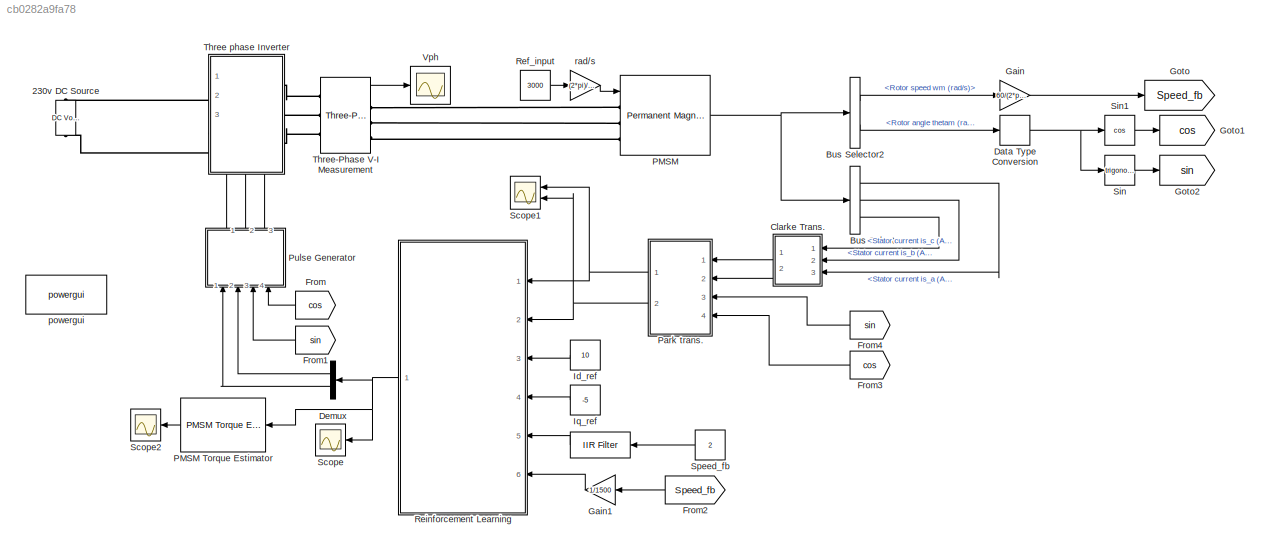
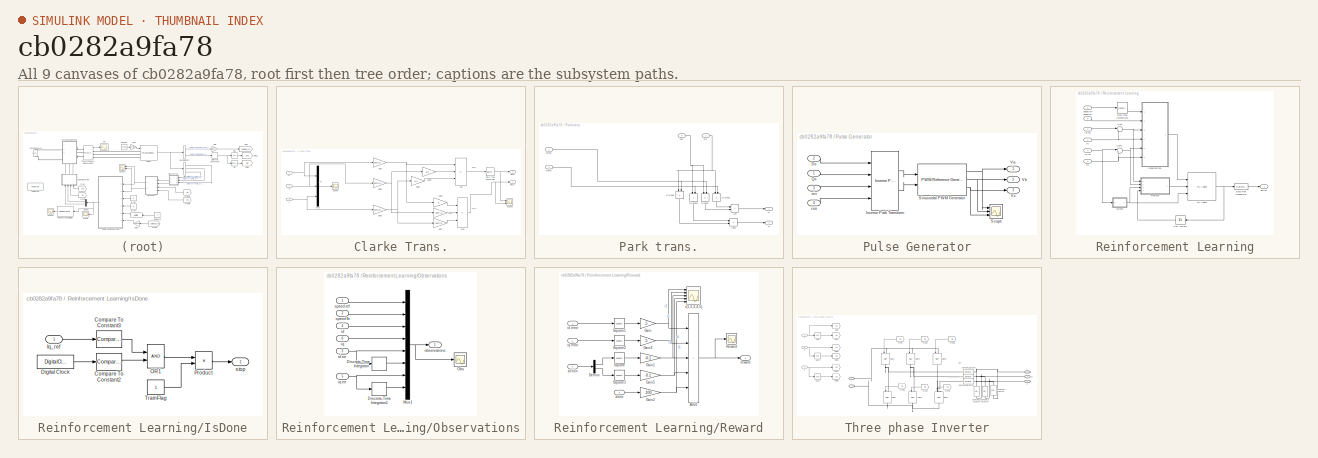
[diagram: thumbnail index - all 9 canvases of the model, root first then tree order]
MODEL slx_cb0282a9fa78
KIND model
CONFIG AbsTol = auto
CONFIG EnableMultiTasking = off
CONFIG FixedStep = auto
CONFIG MaxStep = auto
CONFIG MinStep = auto
CONFIG RelTol = 1e-3
CONFIG SampleTimeConstraint = Unconstrained
CONFIG SolverName = VariableStepAuto
CONFIG StartTime = 0.0
CONFIG StopTime = 0.2
BLOCK [Reference]      REF=mcbcontrolslib/IIR Filter
  Ports = [1, 1]
  SourceBlock = mcbcontrolslib/IIR Filter
  SourceProductBaseCode = MT
  SourceType = IIR Filter
BLOCK [Reference] 230v DC Source  REF=spsDCVoltageSourceLib/DC Voltage Source
  NameLocation = right
  Ports = [0, 0, 0, 0, 0, 1, 1]
  SourceBlock = spsDCVoltageSourceLib/DC Voltage Source
  SourceProductBaseCode = PS
  SourceType = DC Voltage Source
BLOCK [BusSelector] Bus Selector
  OutputSignals = Stator current is_a (A),Stator current is_b (A),Stator current is_c (A)
  Ports = [1, 3]
BLOCK [BusSelector] Bus Selector2
  OutputSignals = Rotor speed wm (rad/s),Rotor angle thetam (rad)
  Ports = [1, 2]
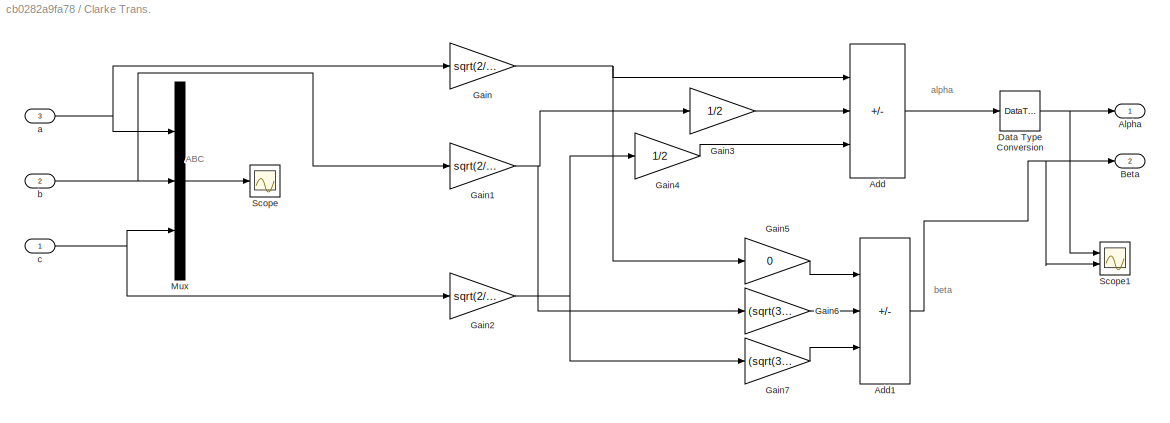
BLOCK [SubSystem] Clarke Trans.
  Ports = [3, 2]
  RequestExecContextInheritance = off
BLOCK [Sum] Clarke Trans./Add
  AccumDataTypeStr = single
  IconShape = rectangular
  Inputs = +--
  Ports = [3, 1]
BLOCK [Sum] Clarke Trans./Add1
  AccumDataTypeStr = double
  IconShape = rectangular
  Inputs = ++-
  Ports = [3, 1]
BLOCK [Outport] Clarke Trans./Alpha
BLOCK [Outport] Clarke Trans./Beta
  Port = 2
BLOCK [DataTypeConversion] Clarke Trans./Data Type Conversion
  OutDataTypeStr = single
  RndMeth = Floor
  SaturateOnIntegerOverflow = off
BLOCK [Gain] Clarke Trans./Gain
  Gain = sqrt(2/3)
BLOCK [Gain] Clarke Trans./Gain1
  Gain = sqrt(2/3)
BLOCK [Gain] Clarke Trans./Gain2
  Gain = sqrt(2/3)
BLOCK [Gain] Clarke Trans./Gain3
  Gain = 1/2
BLOCK [Gain] Clarke Trans./Gain4
  Gain = 1/2
BLOCK [Gain] Clarke Trans./Gain5
  Gain = 0
BLOCK [Gain] Clarke Trans./Gain6
  Gain = (sqrt(3))/2
BLOCK [Gain] Clarke Trans./Gain7
  Gain = (sqrt(3))/2
BLOCK [Mux] Clarke Trans./Mux
  DisplayOption = bar
  Inputs = 3
  Ports = [3, 1]
BLOCK [Scope] Clarke Trans./Scope
  Floating = off
  NumInputPorts = 1
  Ports = [1]
  ScopeSpecificationString = Simulink.scopes.TimeScopeBlockCfg('CurrentConfiguration', extmgr.ConfigurationSet(extmgr.Configuration('Core','General UI',true),extmgr.Configuration('Core','Source UI',true),extmgr.Configuration('Sources','WiredSimulink',true,'DataLoggingVariableName','ScopeData2'),extmgr.Configuration('Visuals','Time Domain',true,'SerializedDisplays',{struct('MinYLimReal','-1.2435','MaxYLimReal','1.07088','YLabe...<+1391ch>
BLOCK [Scope] Clarke Trans./Scope1
  Floating = off
  NumInputPorts = 2
  Ports = [2]
  ScopeSpecificationString = Simulink.scopes.TimeScopeBlockCfg('CurrentConfiguration', extmgr.ConfigurationSet(extmgr.Configuration('Core','General UI',true),extmgr.Configuration('Core','Source UI',true),extmgr.Configuration('Sources','WiredSimulink',true,'DataLoggingVariableName','ScopeData2'),extmgr.Configuration('Visuals','Time Domain',true,'SerializedDisplays',{struct('MinYLimReal','-1.56491','MaxYLimReal','1.62173','YLab...<+1463ch>
BLOCK [Inport] Clarke Trans./a
  Port = 3
BLOCK [Inport] Clarke Trans./b
  Port = 2
BLOCK [Inport] Clarke Trans./c
BLOCK [DataTypeConversion] Data Type Conversion
  OutDataTypeStr = single
  RndMeth = Floor
  SaturateOnIntegerOverflow = off
BLOCK [Demux] Demux
  Outputs = 2
  Ports = [1, 2]
BLOCK [From] From
  GotoTag = cos
BLOCK [From] From1
  GotoTag = sin
BLOCK [From] From2
  GotoTag = Speed_fb
BLOCK [From] From3
  GotoTag = cos
BLOCK [From] From4
  GotoTag = sin
BLOCK [Gain] Gain
  Gain = 60/(2*pi)
  OutDataTypeStr = double
BLOCK [Gain] Gain1
  Gain = 1/1500
BLOCK [Goto] Goto
  GotoTag = Speed_fb
BLOCK [Goto] Goto1
  GotoTag = cos
BLOCK [Goto] Goto2
  GotoTag = sin
BLOCK [Constant] Id_ref
  NameLocation = right
  OutDataTypeStr = double
  SampleTime = Ts_speed
  Value = 10
BLOCK [Constant] Iq_ref
  NameLocation = right
  OutDataTypeStr = double
  SampleTime = Ts_speed
  Value = -5
BLOCK [Reference] PMSM  REF=spsPermanentMagnetSynchronousMachineLib/Permanent Magnet
Synchronous Machine
  Ports = [1, 1, 0, 0, 0, 3]
  SourceBlock = spsPermanentMagnetSynchronousMachineLib/Permanent Magnet\nSynchronous Machine
  SourceProductBaseCode = PS
  SourceType = Permanent Magnet Synchronous Machine
BLOCK [Reference] PMSM Torque Estimator  REF=eePmsmTorqueEstimator/PMSM Torque
Estimator
  Ports = [1, 1]
  SourceBlock = eePmsmTorqueEstimator/PMSM Torque\nEstimator
  SourceProductBaseCode = PS
  SourceType = PMSM Torque Estimator
BLOCK [SubSystem] Park trans.
  NameLocation = top
  Ports = [4, 2]
  RequestExecContextInheritance = off
BLOCK [Sum] Park trans./Add
  IconShape = rectangular
  Ports = [2, 1]
BLOCK [Sum] Park trans./Add1
  IconShape = rectangular
  Inputs = -+
  Ports = [2, 1]
BLOCK [Inport] Park trans./Beta
  Port = 2
BLOCK [Outport] Park trans./D
BLOCK [Product] Park trans./Divide
  Inputs = **
  NameLocation = left
  Ports = [2, 1]
BLOCK [Product] Park trans./Divide1
  Inputs = **
  NameLocation = left
  Ports = [2, 1]
BLOCK [Product] Park trans./Divide2
  Inputs = **
  NameLocation = left
  Ports = [2, 1]
BLOCK [Product] Park trans./Divide3
  Inputs = **
  NameLocation = left
  Ports = [2, 1]
BLOCK [Outport] Park trans./Q
  Port = 2
BLOCK [Inport] Park trans./alpha
BLOCK [Inport] Park trans./cos
  Port = 4
BLOCK [Inport] Park trans./sin
  Port = 3
BLOCK [SubSystem] Pulse Generator
  NameLocation = left
  Ports = [4, 3]
  RequestExecContextInheritance = off
BLOCK [Inport] Pulse Generator/Ds
  Port = 2
BLOCK [Reference] Pulse Generator/Inverse Park Transform  REF=mcbcontrolslib/Inverse Park Transform
  Ports = [4, 2]
  SourceBlock = mcbcontrolslib/Inverse Park Transform
  SourceProductBaseCode = MT
  SourceType = Inverse Park Transform
BLOCK [Inport] Pulse Generator/Qs
BLOCK [Scope] Pulse Generator/Scope
  Floating = off
  NumInputPorts = 3
  Ports = [3]
  ScopeSpecificationString = Simulink.scopes.TimeScopeBlockCfg('CurrentConfiguration', extmgr.ConfigurationSet(extmgr.Configuration('Core','General UI',true),extmgr.Configuration('Core','Source UI',true),extmgr.Configuration('Sources','WiredSimulink',true,'DataLoggingVariableName','ScopeData4'),extmgr.Configuration('Visuals','Time Domain',true,'SerializedDisplays',{struct('MinYLimReal','-1.48048','MaxYLimReal','1.47516','YLab...<+1495ch>
BLOCK [Reference] Pulse Generator/Sinusoidal PWM Generator  REF=mcbcontrolslib/PWM Reference Generator
  Ports = [2, 3]
  SourceBlock = mcbcontrolslib/PWM Reference Generator
  SourceProductBaseCode = MT
  SourceType = PWM Modulation
BLOCK [Outport] Pulse Generator/Va
BLOCK [Outport] Pulse Generator/Vb
  Port = 2
BLOCK [Outport] Pulse Generator/Vc
  Port = 3
BLOCK [Inport] Pulse Generator/cos
  Port = 4
BLOCK [Inport] Pulse Generator/sin
  Port = 3
BLOCK [Constant] Ref_input
  NameLocation = top
  SampleTime = Ts_simulink
  Value = 3000
BLOCK [SubSystem] Reinforcement Learning
  NameLocation = top
  Ports = [6, 1]
  RequestExecContextInheritance = off
BLOCK [DataTypeConversion] Reinforcement Learning/Data Type Conversion
  OutDataTypeStr = dataType
  RndMeth = Floor
  SaturateOnIntegerOverflow = off
BLOCK [DataTypeConversion] Reinforcement Learning/Data Type Conversion1
  OutDataTypeStr = double
  RndMeth = Floor
  SaturateOnIntegerOverflow = off
BLOCK [SubSystem] Reinforcement Learning/IsDone
  Ports = [1, 1]
  RequestExecContextInheritance = off
BLOCK [Reference] Reinforcement Learning/IsDone/Compare To Constant2  REF=simulink/Logic and Bit
Operations/Compare
To Constant
  Ports = [1, 1]
  SourceBlock = simulink/Logic and Bit\nOperations/Compare\nTo Constant
  SourceProductBaseCode = SL
  SourceType = Compare To Constant
BLOCK [Reference] Reinforcement Learning/IsDone/Compare To Constant3  REF=simulink/Logic and Bit
Operations/Compare
To Constant
  Ports = [1, 1]
  SourceBlock = simulink/Logic and Bit\nOperations/Compare\nTo Constant
  SourceProductBaseCode = SL
  SourceType = Compare To Constant
BLOCK [DigitalClock] Reinforcement Learning/IsDone/Digital Clock
  SampleTime = Ts_agent
BLOCK [Inport] Reinforcement Learning/IsDone/Iq_ref
BLOCK [Logic] Reinforcement Learning/IsDone/OR1
  AllPortsSameDT = off
  IconShape = distinctive
  OutDataTypeStr = boolean
  Ports = [2, 1]
BLOCK [Product] Reinforcement Learning/IsDone/Product
  Ports = [2, 1]
BLOCK [Constant] Reinforcement Learning/IsDone/TrainFlag
  OutDataTypeStr = double
BLOCK [Outport] Reinforcement Learning/IsDone/stop
BLOCK [SubSystem] Reinforcement Learning/Observations
  Ports = [6, 1]
  RequestExecContextInheritance = off
BLOCK [DiscreteIntegrator] Reinforcement Learning/Observations/Discrete-Time Integrator
  ICPrevOutput = DiscIntNeverNeededParam
  ICPrevScaledInput = DiscIntNeverNeededParam
  InitialConditionSetting = Auto
  Ports = [1, 1]
  SampleTime = -1
BLOCK [DiscreteIntegrator] Reinforcement Learning/Observations/Discrete-Time Integrator1
  ICPrevOutput = DiscIntNeverNeededParam
  ICPrevScaledInput = DiscIntNeverNeededParam
  InitialConditionSetting = Auto
  Ports = [1, 1]
  SampleTime = -1
BLOCK [Mux] Reinforcement Learning/Observations/Mux1
  DisplayOption = bar
  Inputs = 8
  Ports = [8, 1]
BLOCK [Scope] Reinforcement Learning/Observations/Obs
  Floating = off
  NumInputPorts = 1
  Ports = [1]
  ScopeSpecificationString = Simulink.scopes.TimeScopeBlockCfg('CurrentConfiguration', extmgr.ConfigurationSet(extmgr.Configuration('Core','General UI',true),extmgr.Configuration('Core','Source UI',true),extmgr.Configuration('Sources','WiredSimulink',true,'DataLoggingVariableName','ScopeData1'),extmgr.Configuration('Visuals','Time Domain',true,'SerializedDisplays',{struct('MinYLimReal','-13.3621','MaxYLimReal','7.61024','YLab...<+1489ch>
BLOCK [Inport] Reinforcement Learning/Observations/id
  Port = 4
BLOCK [Inport] Reinforcement Learning/Observations/id err
  Port = 3
BLOCK [Inport] Reinforcement Learning/Observations/iq
  Port = 6
BLOCK [Inport] Reinforcement Learning/Observations/iq err
  Port = 5
BLOCK [Outport] Reinforcement Learning/Observations/observations
  VectorParamsAs1DForOutWhenUnconnected = off
BLOCK [Inport] Reinforcement Learning/Observations/speed fb
  Port = 2
BLOCK [Inport] Reinforcement Learning/Observations/speed ref
BLOCK [Reference] Reinforcement Learning/RL Agent  REF=rllib/RL Agent
  Ports = [3, 1]
  SourceBlock = rllib/RL Agent
  SourceProductBaseCode = RL
  SourceType = RL Agent
BLOCK [SubSystem] Reinforcement Learning/Reward
  Ports = [4, 1]
  RequestExecContextInheritance = off
BLOCK [Scope] Reinforcement Learning/Reward/ r(1,2,3,4,5)
  Floating = off
  NumInputPorts = 5
  Ports = [5]
  ScopeSpecificationString = Simulink.scopes.TimeScopeBlockCfg('CurrentConfiguration', extmgr.ConfigurationSet(extmgr.Configuration('Core','General UI',true),extmgr.Configuration('Core','Source UI',true),extmgr.Configuration('Sources','WiredSimulink',true,'DataLoggingVariableName','ScopeData2'),extmgr.Configuration('Visuals','Time Domain',true,'SerializedDisplays',{struct('MinYLimReal','-28.76146','MaxYLimReal','3.19572','YLa...<+1566ch>
BLOCK [Sum] Reinforcement Learning/Reward/Add1
  IconShape = rectangular
  Inputs = +++++
  Ports = [5, 1]
BLOCK [Demux] Reinforcement Learning/Reward/Demux
  Outputs = 2
  Ports = [1, 2]
BLOCK [Gain] Reinforcement Learning/Reward/Gain
  Gain = -5
BLOCK [Gain] Reinforcement Learning/Reward/Gain1
  Gain = -0.1
BLOCK [Gain] Reinforcement Learning/Reward/Gain2
  Gain = -100
BLOCK [Gain] Reinforcement Learning/Reward/Gain3
  Gain = -5
BLOCK [Gain] Reinforcement Learning/Reward/Gain5
  Gain = -0.1
BLOCK [Scope] Reinforcement Learning/Reward/Reward
  Floating = off
  NumInputPorts = 1
  Ports = [1]
  ScopeSpecificationString = Simulink.scopes.TimeScopeBlockCfg('CurrentConfiguration', extmgr.ConfigurationSet(extmgr.Configuration('Core','General UI',true),extmgr.Configuration('Core','Source UI',true),extmgr.Configuration('Sources','WiredSimulink',true,'DataLoggingVariableName','ScopeData2'),extmgr.Configuration('Visuals','Time Domain',true,'SerializedDisplays',{struct('MinYLimReal','-791.1215','MaxYLimReal','-453.57393','...<+1402ch>
BLOCK [Math] Reinforcement Learning/Reward/Square
  Operator = square
  Ports = [1, 1]
BLOCK [Math] Reinforcement Learning/Reward/Square1
  Operator = square
  Ports = [1, 1]
BLOCK [Math] Reinforcement Learning/Reward/Square2
  Operator = square
  Ports = [1, 1]
BLOCK [Math] Reinforcement Learning/Reward/Square3
  Operator = square
  Ports = [1, 1]
BLOCK [Inport] Reinforcement Learning/Reward/action
  Port = 4
BLOCK [Inport] Reinforcement Learning/Reward/done
  Port = 3
BLOCK [Inport] Reinforcement Learning/Reward/id error
BLOCK [Inport] Reinforcement Learning/Reward/iq error
  Port = 2
BLOCK [Outport] Reinforcement Learning/Reward/reward
  VectorParamsAs1DForOutWhenUnconnected = off
BLOCK [Sum] Reinforcement Learning/Sum
  Inputs = |+-
  OutDataTypeStr = Inherit: Inherit via back propagation
  Ports = [2, 1]
BLOCK [Sum] Reinforcement Learning/Sum1
  Inputs = |+-
  OutDataTypeStr = Inherit: Inherit via back propagation
  Ports = [2, 1]
BLOCK [UnitDelay] Reinforcement Learning/Unit Delay2
  HasFrameUpgradeWarning = on
  SampleTime = -1
BLOCK [Outport] Reinforcement Learning/action
BLOCK [Inport] Reinforcement Learning/id
BLOCK [Inport] Reinforcement Learning/id ref
  Port = 3
BLOCK [Inport] Reinforcement Learning/iq
  Port = 2
BLOCK [Inport] Reinforcement Learning/iq ref
  Port = 4
BLOCK [Inport] Reinforcement Learning/speed fb
  Port = 6
BLOCK [Inport] Reinforcement Learning/speed ref
  Port = 5
BLOCK [Scope] Scope
  Floating = off
  NumInputPorts = 1
  Ports = [1]
  ScopeSpecificationString = Simulink.scopes.TimeScopeBlockCfg('CurrentConfiguration', extmgr.ConfigurationSet(extmgr.Configuration('Core','General UI',true),extmgr.Configuration('Core','Source UI',true),extmgr.Configuration('Sources','WiredSimulink',true,'DataLoggingVariableName','ScopeData3'),extmgr.Configuration('Visuals','Time Domain',true,'SerializedDisplays',{struct('MinYLimReal','0.46495','MaxYLimReal','0.97662','YLabe...<+1435ch>
BLOCK [Scope] Scope1
  Floating = off
  NumInputPorts = 2
  Ports = [2]
  ScopeSpecificationString = Simulink.scopes.TimeScopeBlockCfg('CurrentConfiguration', extmgr.ConfigurationSet(extmgr.Configuration('Core','General UI',true),extmgr.Configuration('Core','Source UI',true),extmgr.Configuration('Sources','WiredSimulink',true,'DataLoggingVariableName','ScopeData2'),extmgr.Configuration('Visuals','Time Domain',true,'SerializedDisplays',{struct('MinYLimReal','-1.39899','MaxYLimReal','1.56085','YLab...<+1415ch>
BLOCK [Scope] Scope2
  Floating = off
  NumInputPorts = 1
  Ports = [1]
  ScopeSpecificationString = Simulink.scopes.TimeScopeBlockCfg('CurrentConfiguration', extmgr.ConfigurationSet(extmgr.Configuration('Core','General UI',true),extmgr.Configuration('Core','Source UI',true),extmgr.Configuration('Sources','WiredSimulink',true,'DataLoggingVariableName','ScopeData1'),extmgr.Configuration('Visuals','Time Domain',true,'SerializedDisplays',{struct('MinYLimReal','0.33738','MaxYLimReal','0.41997','YLabe...<+1405ch>
BLOCK [Trigonometry] Sin
  NumberOfDataPoints = double
  Ports = [1, 1]
BLOCK [Trigonometry] Sin1
  Operator = cos
  Ports = [1, 1]
BLOCK [Constant] Speed_fb
  SampleTime = Ts_speed
  Value = 2
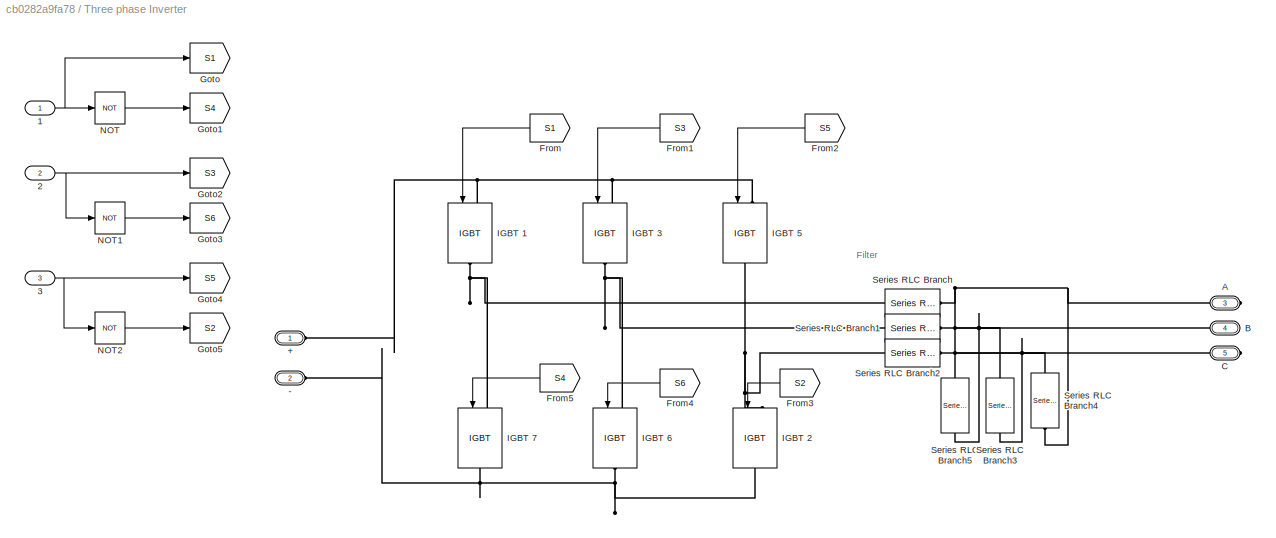
BLOCK [SubSystem] Three phase Inverter
  NameLocation = top
  PortSchema = {"entries":[{"content":{"sides":[{"content":{"connectorIds":["LConn1","LConn2"]},"type":"ConnectorPlacement.EquallySpacedRectSide","uuid":"7b196236-775e-42c1-83d0-0d6d250710e6"},{"content":{"connectorIds":["RConn1","RConn2","RConn3"],"side":"RIGHT"},"type":"ConnectorPlacement.EquallySpacedRectSide","uuid":"b457e177-0c4c-43e7-9cb7-fdd2074136b6"},{"content":{"connectorIds":[],"side":"TOP"},"type":"C...<+433ch>
  Ports = [3, 0, 0, 0, 0, 2, 3]
  RequestExecContextInheritance = off
BLOCK [PMIOPort] Three phase Inverter/+
  Side = Left
BLOCK [PMIOPort] Three phase Inverter/-
  Port = 2
  Side = Left
BLOCK [Inport] Three phase Inverter/1
BLOCK [Inport] Three phase Inverter/2
  Port = 2
BLOCK [Inport] Three phase Inverter/3
  Port = 3
BLOCK [PMIOPort] Three phase Inverter/A
  Port = 3
  Side = Right
BLOCK [PMIOPort] Three phase Inverter/B
  Port = 4
  Side = Right
BLOCK [PMIOPort] Three phase Inverter/C
  Port = 5
  Side = Right
BLOCK [From] Three phase Inverter/From
  GotoTag = S1
BLOCK [From] Three phase Inverter/From1
  GotoTag = S3
BLOCK [From] Three phase Inverter/From2
  GotoTag = S5
BLOCK [From] Three phase Inverter/From3
  GotoTag = S2
BLOCK [From] Three phase Inverter/From4
  GotoTag = S6
BLOCK [From] Three phase Inverter/From5
  GotoTag = S4
BLOCK [Goto] Three phase Inverter/Goto
  GotoTag = S1
BLOCK [Goto] Three phase Inverter/Goto1
  GotoTag = S4
BLOCK [Goto] Three phase Inverter/Goto2
  GotoTag = S3
BLOCK [Goto] Three phase Inverter/Goto3
  GotoTag = S6
BLOCK [Goto] Three phase Inverter/Goto4
  GotoTag = S5
BLOCK [Goto] Three phase Inverter/Goto5
  GotoTag = S2
BLOCK [Reference] Three phase Inverter/IGBT 1  REF=spsIGBTLib/IGBT
  NameLocation = left
  Ports = [1, 0, 0, 0, 0, 1, 1]
  SourceBlock = spsIGBTLib/IGBT
  SourceProductBaseCode = PS
  SourceType = IGBT
BLOCK [Reference] Three phase Inverter/IGBT 2  REF=spsIGBTLib/IGBT
  NameLocation = left
  Ports = [1, 0, 0, 0, 0, 1, 1]
  SourceBlock = spsIGBTLib/IGBT
  SourceProductBaseCode = PS
  SourceType = IGBT
BLOCK [Reference] Three phase Inverter/IGBT 3  REF=spsIGBTLib/IGBT
  NameLocation = left
  Ports = [1, 0, 0, 0, 0, 1, 1]
  SourceBlock = spsIGBTLib/IGBT
  SourceProductBaseCode = PS
  SourceType = IGBT
BLOCK [Reference] Three phase Inverter/IGBT 5  REF=spsIGBTLib/IGBT
  NameLocation = left
  Ports = [1, 0, 0, 0, 0, 1, 1]
  SourceBlock = spsIGBTLib/IGBT
  SourceProductBaseCode = PS
  SourceType = IGBT
BLOCK [Reference] Three phase Inverter/IGBT 6  REF=spsIGBTLib/IGBT
  NameLocation = left
  Ports = [1, 0, 0, 0, 0, 1, 1]
  SourceBlock = spsIGBTLib/IGBT
  SourceProductBaseCode = PS
  SourceType = IGBT
BLOCK [Reference] Three phase Inverter/IGBT 7  REF=spsIGBTLib/IGBT
  NameLocation = left
  Ports = [1, 0, 0, 0, 0, 1, 1]
  SourceBlock = spsIGBTLib/IGBT
  SourceProductBaseCode = PS
  SourceType = IGBT
BLOCK [Logic] Three phase Inverter/NOT
  AllPortsSameDT = off
  IconShape = distinctive
  Operator = NOT
  OutDataTypeStr = boolean
  Ports = [1, 1]
BLOCK [Logic] Three phase Inverter/NOT1
  AllPortsSameDT = off
  IconShape = distinctive
  Operator = NOT
  OutDataTypeStr = boolean
  Ports = [1, 1]
BLOCK [Logic] Three phase Inverter/NOT2
  AllPortsSameDT = off
  IconShape = distinctive
  Operator = NOT
  OutDataTypeStr = boolean
  Ports = [1, 1]
BLOCK [Reference] Three phase Inverter/Series RLC Branch  REF=spsSeriesRLCBranchLib/Series RLC Branch
  Ports = [0, 0, 0, 0, 0, 1, 1]
  SourceBlock = spsSeriesRLCBranchLib/Series RLC Branch
  SourceProductBaseCode = PS
  SourceType = Series RLC Branch
BLOCK [Reference] Three phase Inverter/Series RLC Branch1  REF=spsSeriesRLCBranchLib/Series RLC Branch
  Ports = [0, 0, 0, 0, 0, 1, 1]
  SourceBlock = spsSeriesRLCBranchLib/Series RLC Branch
  SourceProductBaseCode = PS
  SourceType = Series RLC Branch
BLOCK [Reference] Three phase Inverter/Series RLC Branch2  REF=spsSeriesRLCBranchLib/Series RLC Branch
  Ports = [0, 0, 0, 0, 0, 1, 1]
  SourceBlock = spsSeriesRLCBranchLib/Series RLC Branch
  SourceProductBaseCode = PS
  SourceType = Series RLC Branch
BLOCK [Reference] Three phase Inverter/Series RLC Branch3  REF=spsSeriesRLCBranchLib/Series RLC Branch
  NameLocation = left
  Ports = [0, 0, 0, 0, 0, 1, 1]
  SourceBlock = spsSeriesRLCBranchLib/Series RLC Branch
  SourceProductBaseCode = PS
  SourceType = Series RLC Branch
BLOCK [Reference] Three phase Inverter/Series RLC Branch4  REF=spsSeriesRLCBranchLib/Series RLC Branch
  NameLocation = left
  Ports = [0, 0, 0, 0, 0, 1, 1]
  SourceBlock = spsSeriesRLCBranchLib/Series RLC Branch
  SourceProductBaseCode = PS
  SourceType = Series RLC Branch
BLOCK [Reference] Three phase Inverter/Series RLC Branch5  REF=spsSeriesRLCBranchLib/Series RLC Branch
  NameLocation = left
  Ports = [0, 0, 0, 0, 0, 1, 1]
  SourceBlock = spsSeriesRLCBranchLib/Series RLC Branch
  SourceProductBaseCode = PS
  SourceType = Series RLC Branch
BLOCK [Reference] Three-Phase V-I Measurement   REF=spsThreePhaseVIMeasurementLib/Three-Phase
V-I Measurement
  Ports = [0, 1, 0, 0, 0, 3, 3]
  SourceBlock = spsThreePhaseVIMeasurementLib/Three-Phase\nV-I Measurement
  SourceProductBaseCode = PS
  SourceType = Three-Phase VI Measurement
BLOCK [Scope] Vph
  Floating = off
  NameLocation = top
  NumInputPorts = 1
  Ports = [1]
  ScopeSpecificationString = Simulink.scopes.TimeScopeBlockCfg('CurrentConfiguration', extmgr.ConfigurationSet(extmgr.Configuration('Core','General UI',true),extmgr.Configuration('Core','Source UI',true),extmgr.Configuration('Sources','WiredSimulink',true,'DataLoggingVariableName','ScopeData1'),extmgr.Configuration('Visuals','Time Domain',true,'SerializedDisplays',{struct('MinYLimReal','-328.76453','MaxYLimReal','400.36589','...<+1496ch>
BLOCK [Reference] powergui  REF=spspowerguiLib/powergui
  Ports = []
  Priority = 1
  SourceBlock = spspowerguiLib/powergui
  SourceProductBaseCode = PS
  SourceType = PSB option menu block
BLOCK [Gain] rad//s
  Gain = (2*pi)/60
  NameLocation = top
  OutDataTypeStr = double
ANNOTATION Clarke Trans.: alpha
ANNOTATION Clarke Trans.: beta
ANNOTATION Clarke Trans.: ABC
ANNOTATION Three phase Inverter: Filter
LINE    :1 -> Reinforcement Learning:5
LINE Bus Selector2:1 -> Gain:1
LINE Bus Selector2:2 -> Data Type Conversion:1
LINE Bus Selector:1 -> Clarke Trans.:3
LINE Bus Selector:2 -> Clarke Trans.:2
LINE Bus Selector:3 -> Clarke Trans.:1
NET Clarke Trans./Add1:1 -> Clarke Trans./Beta:1, Clarke Trans./Scope1:2
LINE Clarke Trans./Add:1 -> Clarke Trans./Data Type Conversion:1
NET Clarke Trans./Data Type Conversion:1 -> Clarke Trans./Alpha:1, Clarke Trans./Scope1:1
NET Clarke Trans./Gain1:1 -> Clarke Trans./Gain3:1, Clarke Trans./Gain6:1
NET Clarke Trans./Gain2:1 -> Clarke Trans./Gain4:1, Clarke Trans./Gain7:1
LINE Clarke Trans./Gain3:1 -> Clarke Trans./Add:2
LINE Clarke Trans./Gain4:1 -> Clarke Trans./Add:3
LINE Clarke Trans./Gain5:1 -> Clarke Trans./Add1:1
LINE Clarke Trans./Gain6:1 -> Clarke Trans./Add1:2
LINE Clarke Trans./Gain7:1 -> Clarke Trans./Add1:3
NET Clarke Trans./Gain:1 -> Clarke Trans./Add:1, Clarke Trans./Gain5:1
LINE Clarke Trans./Mux:1 -> Clarke Trans./Scope:1
NET Clarke Trans./a:1 -> Clarke Trans./Gain:1, Clarke Trans./Mux:1
NET Clarke Trans./b:1 -> Clarke Trans./Gain1:1, Clarke Trans./Mux:2
NET Clarke Trans./c:1 -> Clarke Trans./Gain2:1, Clarke Trans./Mux:3
LINE Clarke Trans.:1 -> Park trans.:1
LINE Clarke Trans.:2 -> Park trans.:2
NET Data Type Conversion:1 -> Sin1:1, Sin:1
LINE Demux:1 -> Pulse Generator:2
LINE Demux:2 -> Pulse Generator:1
LINE From1:1 -> Pulse Generator:3
LINE From2:1 -> Gain1:1
LINE From3:1 -> Park trans.:4
LINE From4:1 -> Park trans.:3
LINE From:1 -> Pulse Generator:4
LINE Gain1:1 -> Reinforcement Learning:6
LINE Gain:1 -> Goto:1
LINE Id_ref:1 -> Reinforcement Learning:3
LINE Iq_ref:1 -> Reinforcement Learning:4
LINE PMSM Torque Estimator:1 -> Scope2:1
NET PMSM:1 -> Bus Selector2:1, Bus Selector:1
LINE Park trans./Add1:1 -> Park trans./Q:1
LINE Park trans./Add:1 -> Park trans./D:1
NET Park trans./Beta:1 -> Park trans./Divide1:2, Park trans./Divide3:2
LINE Park trans./Divide1:1 -> Park trans./Add:1
LINE Park trans./Divide2:1 -> Park trans./Add1:2
LINE Park trans./Divide3:1 -> Park trans./Add1:1
LINE Park trans./Divide:1 -> Park trans./Add:2
NET Park trans./alpha:1 -> Park trans./Divide2:2, Park trans./Divide:2
NET Park trans./cos:1 -> Park trans./Divide3:1, Park trans./Divide:1
NET Park trans./sin:1 -> Park trans./Divide1:1, Park trans./Divide2:1
NET Park trans.:1 -> Reinforcement Learning:1, Scope1:1
NET Park trans.:2 -> Reinforcement Learning:2, Scope1:2
LINE Pulse Generator/Ds:1 -> Pulse Generator/Inverse Park Transform:1
LINE Pulse Generator/Inverse Park Transform:1 -> Pulse Generator/Sinusoidal PWM Generator:1
LINE Pulse Generator/Inverse Park Transform:2 -> Pulse Generator/Sinusoidal PWM Generator:2
LINE Pulse Generator/Qs:1 -> Pulse Generator/Inverse Park Transform:2
NET Pulse Generator/Sinusoidal PWM Generator:1 -> Pulse Generator/Scope:1, Pulse Generator/Va:1
NET Pulse Generator/Sinusoidal PWM Generator:2 -> Pulse Generator/Scope:2, Pulse Generator/Vb:1
NET Pulse Generator/Sinusoidal PWM Generator:3 -> Pulse Generator/Scope:3, Pulse Generator/Vc:1
LINE Pulse Generator/cos:1 -> Pulse Generator/Inverse Park Transform:4
LINE Pulse Generator/sin:1 -> Pulse Generator/Inverse Park Transform:3
LINE Pulse Generator:1 -> Three phase Inverter:1
LINE Pulse Generator:2 -> Three phase Inverter:2
LINE Pulse Generator:3 -> Three phase Inverter:3
LINE Ref_input:1 -> rad//s:1
LINE Reinforcement Learning/Data Type Conversion1:1 -> Reinforcement Learning/Observations:1
LINE Reinforcement Learning/Data Type Conversion:1 -> Reinforcement Learning/action:1
LINE Reinforcement Learning/IsDone/Compare To Constant2:1 -> Reinforcement Learning/IsDone/OR1:2
LINE Reinforcement Learning/IsDone/Compare To Constant3:1 -> Reinforcement Learning/IsDone/OR1:1
LINE Reinforcement Learning/IsDone/Digital Clock:1 -> Reinforcement Learning/IsDone/Compare To Constant2:1
LINE Reinforcement Learning/IsDone/Iq_ref:1 -> Reinforcement Learning/IsDone/Compare To Constant3:1
LINE Reinforcement Learning/IsDone/OR1:1 -> Reinforcement Learning/IsDone/Product:1
LINE Reinforcement Learning/IsDone/Product:1 -> Reinforcement Learning/IsDone/stop:1
LINE Reinforcement Learning/IsDone/TrainFlag:1 -> Reinforcement Learning/IsDone/Product:2
NET Reinforcement Learning/IsDone:1 -> Reinforcement Learning/RL Agent:3, Reinforcement Learning/Reward:3
LINE Reinforcement Learning/Observations/Discrete-Time Integrator1:1 -> Reinforcement Learning/Observations/Mux1:8
LINE Reinforcement Learning/Observations/Discrete-Time Integrator:1 -> Reinforcement Learning/Observations/Mux1:6
NET Reinforcement Learning/Observations/Mux1:1 -> Reinforcement Learning/Observations/Obs:1, Reinforcement Learning/Observations/observations:1
NET Reinforcement Learning/Observations/id err:1 -> Reinforcement Learning/Observations/Discrete-Time Integrator:1, Reinforcement Learning/Observations/Mux1:5
LINE Reinforcement Learning/Observations/id:1 -> Reinforcement Learning/Observations/Mux1:3
NET Reinforcement Learning/Observations/iq err:1 -> Reinforcement Learning/Observations/Discrete-Time Integrator1:1, Reinforcement Learning/Observations/Mux1:7
LINE Reinforcement Learning/Observations/iq:1 -> Reinforcement Learning/Observations/Mux1:4
LINE Reinforcement Learning/Observations/speed fb:1 -> Reinforcement Learning/Observations/Mux1:2
LINE Reinforcement Learning/Observations/speed ref:1 -> Reinforcement Learning/Observations/Mux1:1
LINE Reinforcement Learning/Observations:1 -> Reinforcement Learning/RL Agent:1
NET Reinforcement Learning/RL Agent:1 -> Reinforcement Learning/Data Type Conversion:1, Reinforcement Learning/Unit Delay2:1
NET Reinforcement Learning/Reward/Add1:1 -> Reinforcement Learning/Reward/Reward:1, Reinforcement Learning/Reward/reward:1
LINE Reinforcement Learning/Reward/Demux:1 -> Reinforcement Learning/Reward/Square:1
LINE Reinforcement Learning/Reward/Demux:2 -> Reinforcement Learning/Reward/Square3:1
NET Reinforcement Learning/Reward/Gain1:1 -> Reinforcement Learning/Reward/ r(1,2,3,4,5):3, Reinforcement Learning/Reward/Add1:3
NET Reinforcement Learning/Reward/Gain2:1 -> Reinforcement Learning/Reward/ r(1,2,3,4,5):5, Reinforcement Learning/Reward/Add1:5
NET Reinforcement Learning/Reward/Gain3:1 -> Reinforcement Learning/Reward/ r(1,2,3,4,5):2, Reinforcement Learning/Reward/Add1:2
NET Reinforcement Learning/Reward/Gain5:1 -> Reinforcement Learning/Reward/ r(1,2,3,4,5):4, Reinforcement Learning/Reward/Add1:4
NET Reinforcement Learning/Reward/Gain:1 -> Reinforcement Learning/Reward/ r(1,2,3,4,5):1, Reinforcement Learning/Reward/Add1:1
LINE Reinforcement Learning/Reward/Square1:1 -> Reinforcement Learning/Reward/Gain:1
LINE Reinforcement Learning/Reward/Square2:1 -> Reinforcement Learning/Reward/Gain3:1
LINE Reinforcement Learning/Reward/Square3:1 -> Reinforcement Learning/Reward/Gain5:1
LINE Reinforcement Learning/Reward/Square:1 -> Reinforcement Learning/Reward/Gain1:1
LINE Reinforcement Learning/Reward/action:1 -> Reinforcement Learning/Reward/Demux:1
LINE Reinforcement Learning/Reward/done:1 -> Reinforcement Learning/Reward/Gain2:1
LINE Reinforcement Learning/Reward/id error:1 -> Reinforcement Learning/Reward/Square1:1
LINE Reinforcement Learning/Reward/iq error:1 -> Reinforcement Learning/Reward/Square2:1
LINE Reinforcement Learning/Reward:1 -> Reinforcement Learning/RL Agent:2
NET Reinforcement Learning/Sum1:1 -> Reinforcement Learning/Observations:5, Reinforcement Learning/Reward:2
NET Reinforcement Learning/Sum:1 -> Reinforcement Learning/Observations:3, Reinforcement Learning/Reward:1
LINE Reinforcement Learning/Unit Delay2:1 -> Reinforcement Learning/Reward:4
LINE Reinforcement Learning/id ref:1 -> Reinforcement Learning/Sum:1
NET Reinforcement Learning/id:1 -> Reinforcement Learning/Observations:4, Reinforcement Learning/Sum:2
NET Reinforcement Learning/iq ref:1 -> Reinforcement Learning/IsDone:1, Reinforcement Learning/Sum1:1
NET Reinforcement Learning/iq:1 -> Reinforcement Learning/Observations:6, Reinforcement Learning/Sum1:2
LINE Reinforcement Learning/speed fb:1 -> Reinforcement Learning/Observations:2
LINE Reinforcement Learning/speed ref:1 -> Reinforcement Learning/Data Type Conversion1:1
NET Reinforcement Learning:1 -> Demux:1, PMSM Torque Estimator:1, Scope:1
LINE Sin1:1 -> Goto1:1
LINE Sin:1 -> Goto2:1
LINE Speed_fb:1 ->    :1
NET Three phase Inverter/1:1 -> Three phase Inverter/Goto:1, Three phase Inverter/NOT:1
NET Three phase Inverter/2:1 -> Three phase Inverter/Goto2:1, Three phase Inverter/NOT1:1
NET Three phase Inverter/3:1 -> Three phase Inverter/Goto4:1, Three phase Inverter/NOT2:1
LINE Three phase Inverter/From1:1 -> Three phase Inverter/IGBT 3:1
LINE Three phase Inverter/From2:1 -> Three phase Inverter/IGBT 5:1
LINE Three phase Inverter/From3:1 -> Three phase Inverter/IGBT 2:1
LINE Three phase Inverter/From4:1 -> Three phase Inverter/IGBT 6:1
LINE Three phase Inverter/From5:1 -> Three phase Inverter/IGBT 7:1
LINE Three phase Inverter/From:1 -> Three phase Inverter/IGBT 1:1
LINE Three phase Inverter/NOT1:1 -> Three phase Inverter/Goto3:1
LINE Three phase Inverter/NOT2:1 -> Three phase Inverter/Goto5:1
LINE Three phase Inverter/NOT:1 -> Three phase Inverter/Goto1:1
LINE Three-Phase V-I Measurement :1 -> Vph:1
LINE rad//s:1 -> PMSM:1
PLINE 230v DC Source:LConn1 -- Three phase Inverter:LConn2
PLINE 230v DC Source:RConn1 -- Three phase Inverter:LConn1
PLINE PMSM:LConn1 -- Three-Phase V-I Measurement :RConn1
PLINE PMSM:LConn2 -- Three-Phase V-I Measurement :RConn2
PLINE PMSM:LConn3 -- Three-Phase V-I Measurement :RConn3
PNET net1: Three phase Inverter/+:RConn1 -- Three phase Inverter/IGBT 1:LConn1 -- Three phase Inverter/IGBT 3:LConn1 -- Three phase Inverter/IGBT 5:LConn1
PNET net2: Three phase Inverter/-:RConn1 -- Three phase Inverter/IGBT 2:RConn1 -- Three phase Inverter/IGBT 6:RConn1 -- Three phase Inverter/IGBT 7:RConn1
PNET net3: Three phase Inverter/A:RConn1 -- Three phase Inverter/Series RLC Branch4:RConn1 -- Three phase Inverter/Series RLC Branch5:LConn1 -- Three phase Inverter/Series RLC Branch:RConn1
PNET net4: Three phase Inverter/B:RConn1 -- Three phase Inverter/Series RLC Branch1:RConn1 -- Three phase Inverter/Series RLC Branch3:LConn1 -- Three phase Inverter/Series RLC Branch5:RConn1
PNET net5: Three phase Inverter/C:RConn1 -- Three phase Inverter/Series RLC Branch2:RConn1 -- Three phase Inverter/Series RLC Branch3:RConn1 -- Three phase Inverter/Series RLC Branch4:LConn1
PNET net6: Three phase Inverter/IGBT 1:RConn1 -- Three phase Inverter/IGBT 7:LConn1 -- Three phase Inverter/Series RLC Branch:LConn1
PNET net7: Three phase Inverter/IGBT 2:LConn1 -- Three phase Inverter/IGBT 5:RConn1 -- Three phase Inverter/Series RLC Branch2:LConn1
PNET net8: Three phase Inverter/IGBT 3:RConn1 -- Three phase Inverter/IGBT 6:LConn1 -- Three phase Inverter/Series RLC Branch1:LConn1
PLINE Three phase Inverter:RConn1 -- Three-Phase V-I Measurement :LConn1
PLINE Three phase Inverter:RConn2 -- Three-Phase V-I Measurement :LConn2
PLINE Three phase Inverter:RConn3 -- Three-Phase V-I Measurement :LConn3
note: NET lines group one-source signal fan-out (src -> all destinations, sorted); 1:1 wires keep LINE; PNET lines group multi-terminal physical nets as a canonical sorted terminal list (undirected conserving connections); 2-terminal nets keep the pairwise PLINE form
